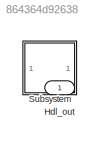
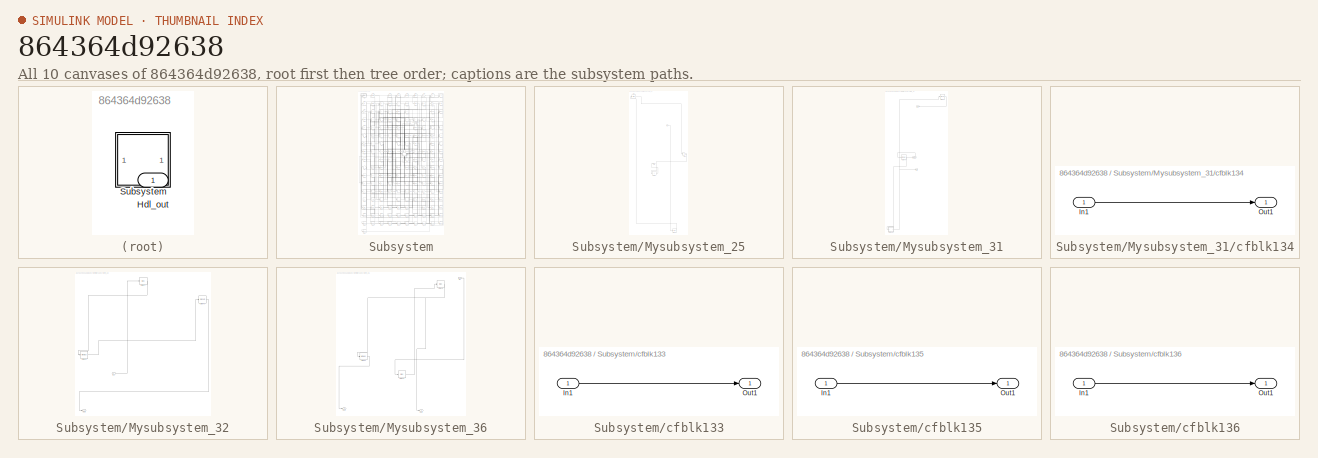
[diagram: thumbnail index - all 10 canvases of the model, root first then tree order]
MODEL slx_864364d92638
KIND model
CONFIG AbsTol = auto
CONFIG EnableMultiTasking = off
CONFIG FixedStep = auto
CONFIG MaxStep = auto
CONFIG MinStep = auto
CONFIG RelTol = 1e-3
CONFIG SampleTimeConstraint = Unconstrained
CONFIG SolverName = VariableStepAuto
CONFIG StartTime = 0.0
CONFIG StopTime = 10.0
BLOCK [Outport] Hdl_out
  OutDataTypeStr = uint8
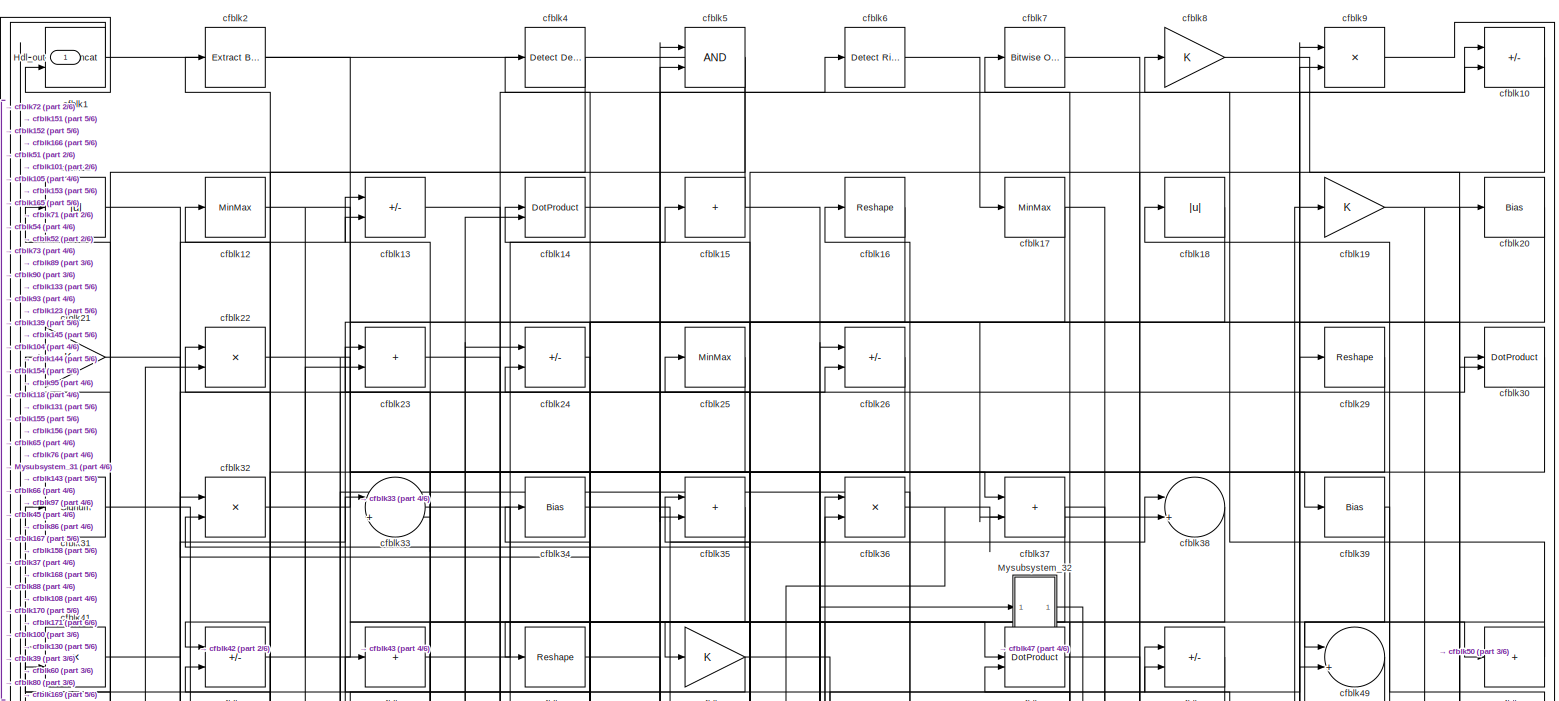
[diagram: Subsystem - part 1/6, full width, top band]
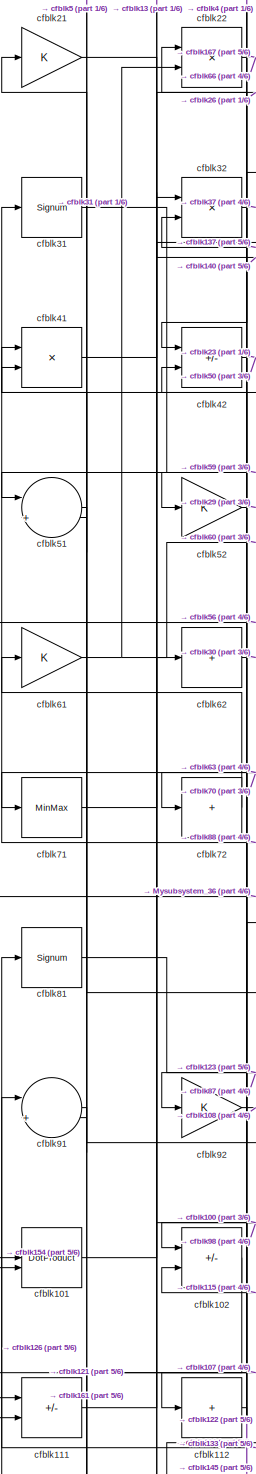
[diagram: Subsystem - part 2/6, middle left region]
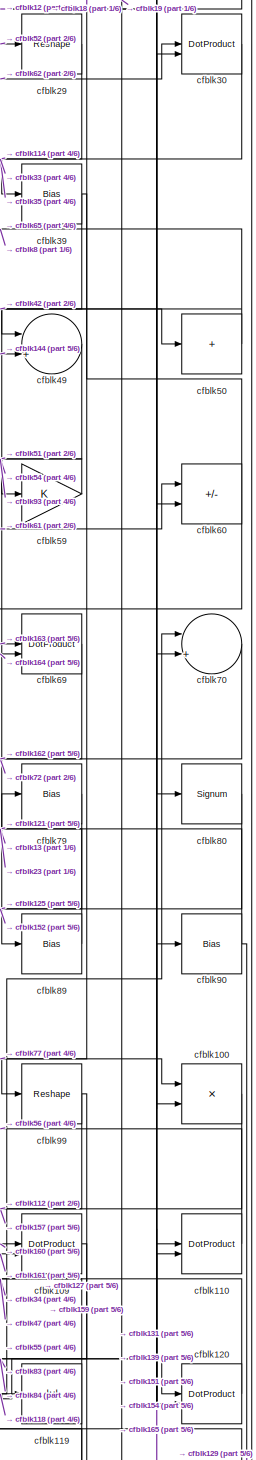
[diagram: Subsystem - part 3/6, middle right region]
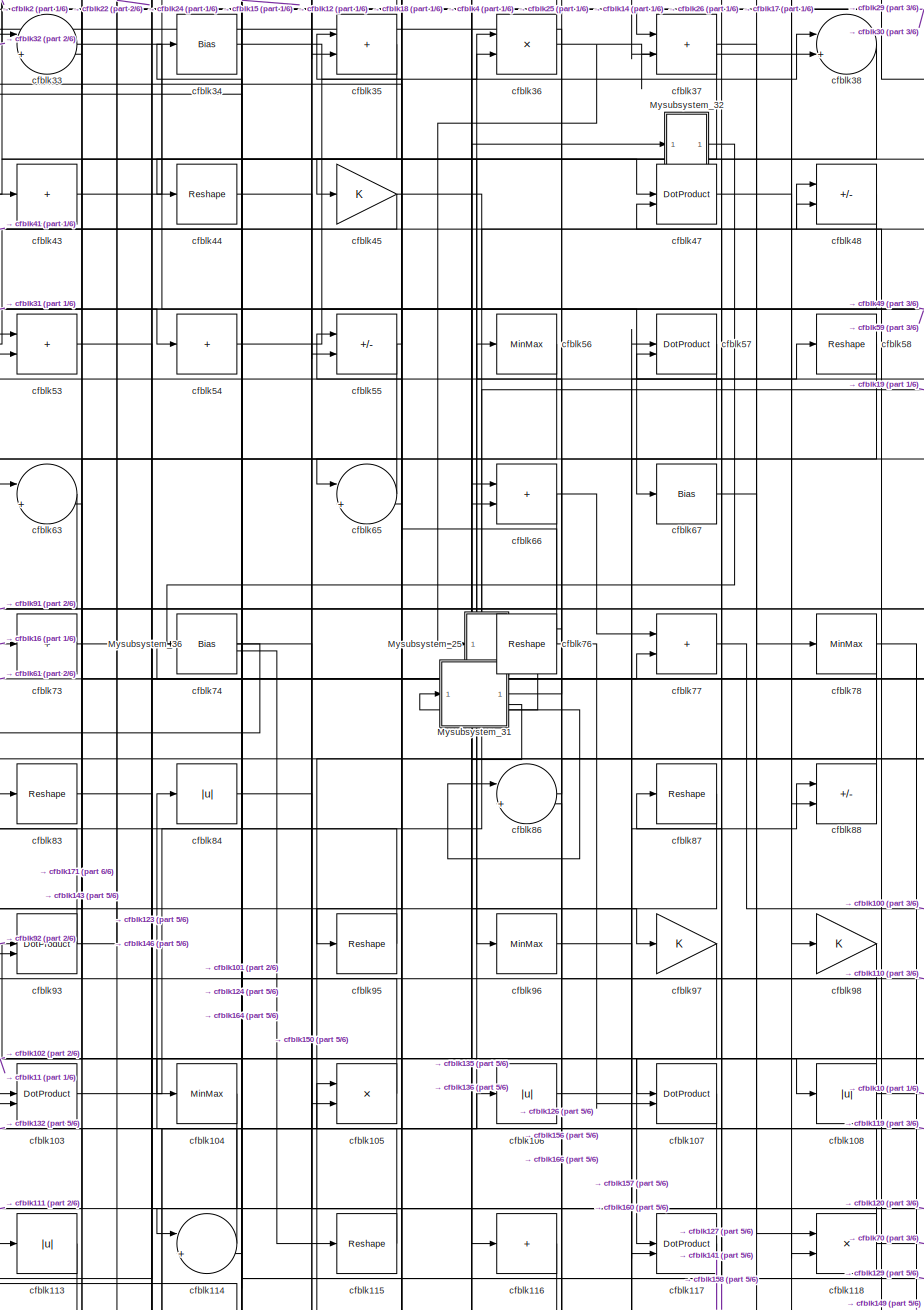
[diagram: Subsystem - part 4/6, central region]
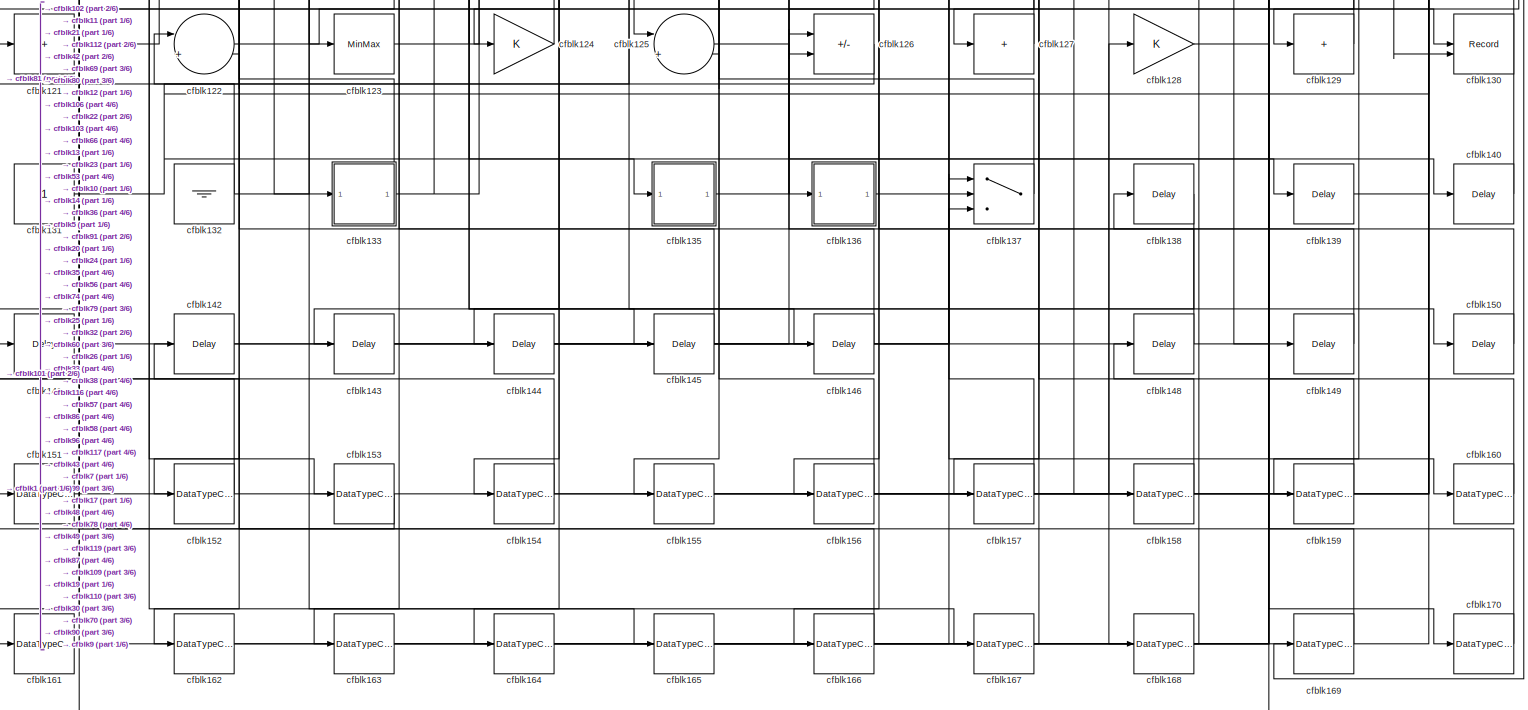
[diagram: Subsystem - part 5/6, full width, bottom band]
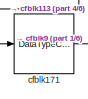
[diagram: Subsystem - part 6/6, bottom left region]
BLOCK [SubSystem] Subsystem
BLOCK [Outport] Subsystem/Hdl_out
  OutDataTypeStr = uint8
BLOCK [SubSystem] Subsystem/Mysubsystem_25
  RTWFcnName = Mysubsystem_25
  RTWFcnNameOpts = User specified
  RTWFileNameOpts = Use function name
  RTWSystemCode = Reusable function
  TreatAsAtomicUnit = on
BLOCK [Inport] Subsystem/Mysubsystem_25/In1
BLOCK [Outport] Subsystem/Mysubsystem_25/Out1
BLOCK [Delay] Subsystem/Mysubsystem_25/cfblk147
  InputPortMap = u0
  SampleTime = 1
BLOCK [Reference] Subsystem/Mysubsystem_25/cfblk3  REF=hdlsllib/Logic and Bit
Operations/Bit Shift
  SourceBlock = hdlsllib/Logic and Bit\nOperations/Bit Shift
  SourceType = Bit Shift
BLOCK [Gain] Subsystem/Mysubsystem_25/cfblk68
BLOCK [Sum] Subsystem/Mysubsystem_25/cfblk85
  IconShape = rectangular
  Inputs = +
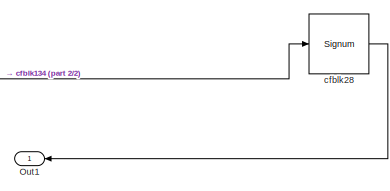
[diagram: Subsystem/Mysubsystem_31 - part 1/2, top right region]
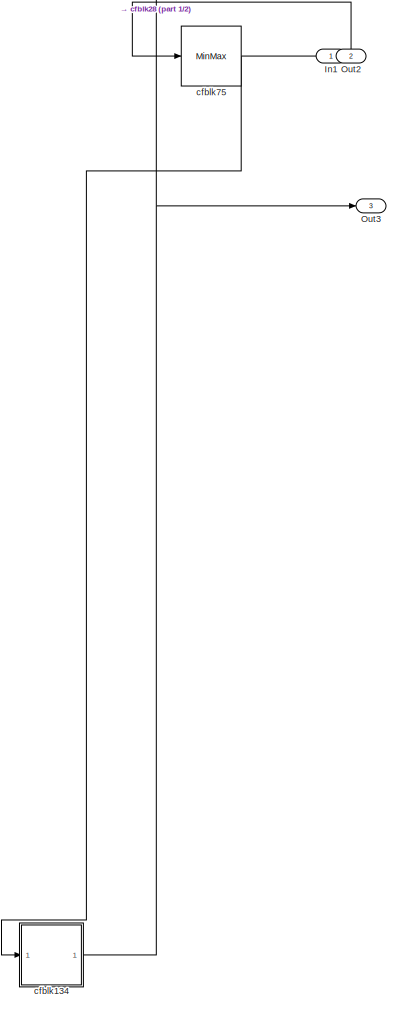
[diagram: Subsystem/Mysubsystem_31 - part 2/2, bottom left region]
BLOCK [SubSystem] Subsystem/Mysubsystem_31
  RTWFcnName = Mysubsystem_31
  RTWFcnNameOpts = User specified
  RTWFileNameOpts = Use function name
  RTWSystemCode = Reusable function
  TreatAsAtomicUnit = on
BLOCK [Inport] Subsystem/Mysubsystem_31/In1
BLOCK [Outport] Subsystem/Mysubsystem_31/Out1
BLOCK [Outport] Subsystem/Mysubsystem_31/Out2
  Port = 2
BLOCK [Outport] Subsystem/Mysubsystem_31/Out3
  Port = 3
BLOCK [SubSystem] Subsystem/Mysubsystem_31/cfblk134
  LibrarySourceBlock = hdlsllib/Ports &\nSubsystems/Subsystem
BLOCK [Inport] Subsystem/Mysubsystem_31/cfblk134/In1
BLOCK [Outport] Subsystem/Mysubsystem_31/cfblk134/Out1
BLOCK [Signum] Subsystem/Mysubsystem_31/cfblk28
BLOCK [MinMax] Subsystem/Mysubsystem_31/cfblk75
BLOCK [SubSystem] Subsystem/Mysubsystem_32
  RTWFcnName = Mysubsystem_32
  RTWFcnNameOpts = User specified
  RTWFileNameOpts = Use function name
  RTWSystemCode = Reusable function
  TreatAsAtomicUnit = on
BLOCK [Inport] Subsystem/Mysubsystem_32/In1
BLOCK [Outport] Subsystem/Mysubsystem_32/Out1
BLOCK [Bias] Subsystem/Mysubsystem_32/cfblk27
  Bias = 0.0
  SaturateOnIntegerOverflow = off
BLOCK [Signum] Subsystem/Mysubsystem_32/cfblk40
BLOCK [MinMax] Subsystem/Mysubsystem_32/cfblk64
BLOCK [SubSystem] Subsystem/Mysubsystem_36
  RTWFcnName = Mysubsystem_36
  RTWFcnNameOpts = User specified
  RTWFileNameOpts = Use function name
  RTWSystemCode = Reusable function
  TreatAsAtomicUnit = on
BLOCK [Inport] Subsystem/Mysubsystem_36/In1
BLOCK [Outport] Subsystem/Mysubsystem_36/Out1
BLOCK [Outport] Subsystem/Mysubsystem_36/Out2
  Port = 2
BLOCK [Bias] Subsystem/Mysubsystem_36/cfblk46
  Bias = 0.0
  SaturateOnIntegerOverflow = off
BLOCK [MinMax] Subsystem/Mysubsystem_36/cfblk82
BLOCK [Bias] Subsystem/Mysubsystem_36/cfblk94
  Bias = 0.0
  SaturateOnIntegerOverflow = off
BLOCK [Reference] Subsystem/cfblk1  REF=hdlsllib/Logic and Bit
Operations/Bit Concat
  SourceBlock = hdlsllib/Logic and Bit\nOperations/Bit Concat
  SourceType = Bit Concat
BLOCK [Sum] Subsystem/cfblk10
  IconShape = rectangular
  Inputs = +-
  OutDataTypeStr = uint8
BLOCK [Product] Subsystem/cfblk100
  Inputs = */
  OutDataTypeStr = uint8
  RndMeth = Zero
  SaturateOnIntegerOverflow = on
BLOCK [DotProduct] Subsystem/cfblk101
  OutDataTypeStr = uint8
BLOCK [Sum] Subsystem/cfblk102
  IconShape = rectangular
  Inputs = +-
  OutDataTypeStr = uint8
BLOCK [DotProduct] Subsystem/cfblk103
  OutDataTypeStr = uint8
BLOCK [MinMax] Subsystem/cfblk104
  OutDataTypeStr = uint8
BLOCK [Product] Subsystem/cfblk105
  Inputs = */
  OutDataTypeStr = uint8
  RndMeth = Zero
  SaturateOnIntegerOverflow = on
BLOCK [Abs] Subsystem/cfblk106
  OutDataTypeStr = uint8
  SaturateOnIntegerOverflow = off
BLOCK [DotProduct] Subsystem/cfblk107
  OutDataTypeStr = uint8
BLOCK [Abs] Subsystem/cfblk108
  OutDataTypeStr = uint8
  SaturateOnIntegerOverflow = off
BLOCK [DotProduct] Subsystem/cfblk109
  OutDataTypeStr = uint8
BLOCK [Abs] Subsystem/cfblk11
  OutDataTypeStr = uint8
  SaturateOnIntegerOverflow = off
BLOCK [DotProduct] Subsystem/cfblk110
  OutDataTypeStr = uint8
BLOCK [Sum] Subsystem/cfblk111
  IconShape = rectangular
  Inputs = +-
  OutDataTypeStr = uint8
BLOCK [Sum] Subsystem/cfblk112
  IconShape = rectangular
  Inputs = +
  OutDataTypeStr = uint8
BLOCK [Abs] Subsystem/cfblk113
  OutDataTypeStr = uint8
  SaturateOnIntegerOverflow = off
BLOCK [Sum] Subsystem/cfblk114
  Inputs = |++
  OutDataTypeStr = uint8
BLOCK [Reshape] Subsystem/cfblk115
BLOCK [Sum] Subsystem/cfblk116
  IconShape = rectangular
  Inputs = +
  OutDataTypeStr = uint8
BLOCK [DotProduct] Subsystem/cfblk117
  OutDataTypeStr = uint8
BLOCK [Product] Subsystem/cfblk118
  Inputs = */
  OutDataTypeStr = uint8
  RndMeth = Zero
  SaturateOnIntegerOverflow = on
BLOCK [Abs] Subsystem/cfblk119
  OutDataTypeStr = uint8
  SaturateOnIntegerOverflow = off
BLOCK [MinMax] Subsystem/cfblk12
  OutDataTypeStr = uint8
BLOCK [DotProduct] Subsystem/cfblk120
  OutDataTypeStr = uint8
BLOCK [Sum] Subsystem/cfblk121
  IconShape = rectangular
  Inputs = +
  OutDataTypeStr = uint8
BLOCK [Sum] Subsystem/cfblk122
  Inputs = |++
  OutDataTypeStr = uint8
BLOCK [MinMax] Subsystem/cfblk123
  OutDataTypeStr = uint8
BLOCK [Gain] Subsystem/cfblk124
  OutDataTypeStr = uint8
BLOCK [Sum] Subsystem/cfblk125
  Inputs = |++
  OutDataTypeStr = uint8
BLOCK [Sum] Subsystem/cfblk126
  IconShape = rectangular
  Inputs = +-
  OutDataTypeStr = uint8
BLOCK [Sum] Subsystem/cfblk127
  IconShape = rectangular
  Inputs = +
  OutDataTypeStr = uint8
BLOCK [Gain] Subsystem/cfblk128
  OutDataTypeStr = uint8
BLOCK [Sum] Subsystem/cfblk129
  IconShape = rectangular
  Inputs = +
  OutDataTypeStr = uint8
BLOCK [Sum] Subsystem/cfblk13
  IconShape = rectangular
  Inputs = +-
  OutDataTypeStr = uint8
BLOCK [Record] Subsystem/cfblk130
  CompatibilityTag = XY
  FileSettingsInternal = {"entries":[{"content":{"excelSettings":{"content":{},"type":"Streamout.ExcelSettings"}},"type":"Streamout.FileSettingStorage","uuid":""}],"packageUris":["http:\/\/schema.mathworks.com\/mf0\/streamout_blocks\/R2020a"],"version":"1.0"}
  Layout = [1 1]
  SignalsInternal = {"entries":[{"content":{"signals":[{"content":{"blockPath":[],"dimensions":[1],"domain":"","lineColor":"#a2142f","plots":[1],"port":1,"signalID":38168,"signalName":"cfblk122"},"type":"RecordBlkView.Signal","uuid":""},{"content":{"blockPath":[],"dimensions":[1],"domain":"","lineColor":"#139fff","plots":[1],"port":2,"signalID":38171,"signalName":"cfblk19"},"type":"RecordBlkView.Signal","uuid":""}]},...<+143ch>
  VisualizationBindings = {"xyplotplugin":{"info":[{"series":[{"bindingParametersList":[{"parameter":"X-Axis","signalID":38168,"signalName":"cfblk122"},{"parameter":"Y-Axis","signalID":38171,"signalName":"cfblk19"}],"seriesID":28821}],"subplotID":1}]}}
  st = -1
BLOCK [Constant] Subsystem/cfblk131
  OutDataTypeStr = uint8
  SampleTime = -1
BLOCK [Ground] Subsystem/cfblk132
BLOCK [SubSystem] Subsystem/cfblk133
  LibrarySourceBlock = hdlsllib/Ports &\nSubsystems/Subsystem
BLOCK [Inport] Subsystem/cfblk133/In1
BLOCK [Outport] Subsystem/cfblk133/Out1
BLOCK [SubSystem] Subsystem/cfblk135
  LibrarySourceBlock = hdlsllib/Ports &\nSubsystems/Subsystem
BLOCK [Inport] Subsystem/cfblk135/In1
BLOCK [Outport] Subsystem/cfblk135/Out1
BLOCK [SubSystem] Subsystem/cfblk136
  LibrarySourceBlock = hdlsllib/Ports &\nSubsystems/Subsystem
BLOCK [Inport] Subsystem/cfblk136/In1
BLOCK [Outport] Subsystem/cfblk136/Out1
BLOCK [Switch] Subsystem/cfblk137
  InputSameDT = off
  OutDataTypeStr = uint8
  SaturateOnIntegerOverflow = off
BLOCK [Delay] Subsystem/cfblk138
  InputPortMap = u0
  SampleTime = 1
BLOCK [Delay] Subsystem/cfblk139
  InputPortMap = u0
  SampleTime = 1
BLOCK [DotProduct] Subsystem/cfblk14
  OutDataTypeStr = uint8
BLOCK [Delay] Subsystem/cfblk140
  InputPortMap = u0
  SampleTime = 1
BLOCK [Delay] Subsystem/cfblk141
  InputPortMap = u0
  SampleTime = 1
BLOCK [Delay] Subsystem/cfblk142
  InputPortMap = u0
  SampleTime = 1
BLOCK [Delay] Subsystem/cfblk143
  InputPortMap = u0
  SampleTime = 1
BLOCK [Delay] Subsystem/cfblk144
  InputPortMap = u0
  SampleTime = 1
BLOCK [Delay] Subsystem/cfblk145
  InputPortMap = u0
  SampleTime = 1
BLOCK [Delay] Subsystem/cfblk146
  InputPortMap = u0
  SampleTime = 1
BLOCK [Delay] Subsystem/cfblk148
  InputPortMap = u0
  SampleTime = 1
BLOCK [Delay] Subsystem/cfblk149
  InputPortMap = u0
  SampleTime = 1
BLOCK [Sum] Subsystem/cfblk15
  IconShape = rectangular
  Inputs = +
  OutDataTypeStr = uint8
BLOCK [Delay] Subsystem/cfblk150
  InputPortMap = u0
  SampleTime = 1
BLOCK [DataTypeConversion] Subsystem/cfblk151
  OutDataTypeStr = uint8
  RndMeth = Floor
  SaturateOnIntegerOverflow = off
BLOCK [DataTypeConversion] Subsystem/cfblk152
  OutDataTypeStr = uint8
  RndMeth = Floor
  SaturateOnIntegerOverflow = off
BLOCK [DataTypeConversion] Subsystem/cfblk153
  OutDataTypeStr = uint8
  RndMeth = Floor
  SaturateOnIntegerOverflow = off
BLOCK [DataTypeConversion] Subsystem/cfblk154
  OutDataTypeStr = uint8
  RndMeth = Floor
  SaturateOnIntegerOverflow = off
BLOCK [DataTypeConversion] Subsystem/cfblk155
  OutDataTypeStr = uint8
  RndMeth = Floor
  SaturateOnIntegerOverflow = off
BLOCK [DataTypeConversion] Subsystem/cfblk156
  OutDataTypeStr = uint8
  RndMeth = Floor
  SaturateOnIntegerOverflow = off
BLOCK [DataTypeConversion] Subsystem/cfblk157
  OutDataTypeStr = uint8
  RndMeth = Floor
  SaturateOnIntegerOverflow = off
BLOCK [DataTypeConversion] Subsystem/cfblk158
  OutDataTypeStr = uint8
  RndMeth = Floor
  SaturateOnIntegerOverflow = off
BLOCK [DataTypeConversion] Subsystem/cfblk159
  OutDataTypeStr = uint8
  RndMeth = Floor
  SaturateOnIntegerOverflow = off
BLOCK [Reshape] Subsystem/cfblk16
BLOCK [DataTypeConversion] Subsystem/cfblk160
  OutDataTypeStr = uint8
  RndMeth = Floor
  SaturateOnIntegerOverflow = off
BLOCK [DataTypeConversion] Subsystem/cfblk161
  OutDataTypeStr = uint8
  RndMeth = Floor
  SaturateOnIntegerOverflow = off
BLOCK [DataTypeConversion] Subsystem/cfblk162
  OutDataTypeStr = uint8
  RndMeth = Floor
  SaturateOnIntegerOverflow = off
BLOCK [DataTypeConversion] Subsystem/cfblk163
  OutDataTypeStr = uint8
  RndMeth = Floor
  SaturateOnIntegerOverflow = off
BLOCK [DataTypeConversion] Subsystem/cfblk164
  OutDataTypeStr = uint8
  RndMeth = Floor
  SaturateOnIntegerOverflow = off
BLOCK [DataTypeConversion] Subsystem/cfblk165
  OutDataTypeStr = uint8
  RndMeth = Floor
  SaturateOnIntegerOverflow = off
BLOCK [DataTypeConversion] Subsystem/cfblk166
  OutDataTypeStr = uint8
  RndMeth = Floor
  SaturateOnIntegerOverflow = off
BLOCK [DataTypeConversion] Subsystem/cfblk167
  OutDataTypeStr = uint8
  RndMeth = Floor
  SaturateOnIntegerOverflow = off
BLOCK [DataTypeConversion] Subsystem/cfblk168
  OutDataTypeStr = uint8
  RndMeth = Floor
  SaturateOnIntegerOverflow = off
BLOCK [DataTypeConversion] Subsystem/cfblk169
  OutDataTypeStr = uint8
  RndMeth = Floor
  SaturateOnIntegerOverflow = off
BLOCK [MinMax] Subsystem/cfblk17
  OutDataTypeStr = uint8
BLOCK [DataTypeConversion] Subsystem/cfblk170
  OutDataTypeStr = uint8
  RndMeth = Floor
  SaturateOnIntegerOverflow = off
BLOCK [DataTypeConversion] Subsystem/cfblk171
  OutDataTypeStr = uint8
  RndMeth = Floor
  SaturateOnIntegerOverflow = off
BLOCK [Abs] Subsystem/cfblk18
  OutDataTypeStr = uint8
  SaturateOnIntegerOverflow = off
BLOCK [Gain] Subsystem/cfblk19
  OutDataTypeStr = uint8
BLOCK [Reference] Subsystem/cfblk2  REF=simulink/Logic and Bit
Operations/Extract Bits
  LibrarySourceBlock = hdlsllib/Logic and Bit\nOperations/Extract Bits
  SourceBlock = simulink/Logic and Bit\nOperations/Extract Bits
  SourceType = Extract Bits
BLOCK [Bias] Subsystem/cfblk20
  Bias = 0.0
  SaturateOnIntegerOverflow = off
BLOCK [Gain] Subsystem/cfblk21
  OutDataTypeStr = uint8
BLOCK [Product] Subsystem/cfblk22
  Inputs = */
  OutDataTypeStr = uint8
  RndMeth = Zero
  SaturateOnIntegerOverflow = on
BLOCK [Sum] Subsystem/cfblk23
  IconShape = rectangular
  OutDataTypeStr = uint8
BLOCK [Sum] Subsystem/cfblk24
  IconShape = rectangular
  Inputs = +-
  OutDataTypeStr = uint8
BLOCK [MinMax] Subsystem/cfblk25
  OutDataTypeStr = uint8
BLOCK [Sum] Subsystem/cfblk26
  IconShape = rectangular
  Inputs = +-
  OutDataTypeStr = uint8
BLOCK [Reshape] Subsystem/cfblk29
BLOCK [DotProduct] Subsystem/cfblk30
  OutDataTypeStr = uint8
BLOCK [Signum] Subsystem/cfblk31
BLOCK [Product] Subsystem/cfblk32
  Inputs = */
  OutDataTypeStr = uint8
  RndMeth = Zero
  SaturateOnIntegerOverflow = on
BLOCK [Sum] Subsystem/cfblk33
  Inputs = |++
  OutDataTypeStr = uint8
BLOCK [Bias] Subsystem/cfblk34
  Bias = 0.0
  SaturateOnIntegerOverflow = off
BLOCK [Sum] Subsystem/cfblk35
  IconShape = rectangular
  OutDataTypeStr = uint8
BLOCK [Product] Subsystem/cfblk36
  Inputs = */
  OutDataTypeStr = uint8
  RndMeth = Zero
  SaturateOnIntegerOverflow = on
BLOCK [Sum] Subsystem/cfblk37
  IconShape = rectangular
  OutDataTypeStr = uint8
BLOCK [Sum] Subsystem/cfblk38
  Inputs = |++
  OutDataTypeStr = uint8
BLOCK [Bias] Subsystem/cfblk39
  Bias = 0.0
  SaturateOnIntegerOverflow = off
BLOCK [Reference] Subsystem/cfblk4  REF=simulink/Logic and Bit
Operations/Detect
Decrease
  LibrarySourceBlock = hdlsllib/Logic and Bit\nOperations/Detect\nDecrease
  SourceBlock = simulink/Logic and Bit\nOperations/Detect\nDecrease
  SourceType = Detect Decrease
BLOCK [Product] Subsystem/cfblk41
  Inputs = */
  OutDataTypeStr = uint8
  RndMeth = Zero
  SaturateOnIntegerOverflow = on
BLOCK [Sum] Subsystem/cfblk42
  IconShape = rectangular
  Inputs = +-
  OutDataTypeStr = uint8
BLOCK [Sum] Subsystem/cfblk43
  IconShape = rectangular
  Inputs = +
  OutDataTypeStr = uint8
BLOCK [Reshape] Subsystem/cfblk44
BLOCK [Gain] Subsystem/cfblk45
  OutDataTypeStr = uint8
BLOCK [DotProduct] Subsystem/cfblk47
  OutDataTypeStr = uint8
BLOCK [Sum] Subsystem/cfblk48
  IconShape = rectangular
  Inputs = +-
  OutDataTypeStr = uint8
BLOCK [Sum] Subsystem/cfblk49
  Inputs = |++
  OutDataTypeStr = uint8
BLOCK [Logic] Subsystem/cfblk5
  AllPortsSameDT = off
  OutDataTypeStr = boolean
BLOCK [Sum] Subsystem/cfblk50
  IconShape = rectangular
  Inputs = +
  OutDataTypeStr = uint8
BLOCK [Sum] Subsystem/cfblk51
  Inputs = |++
  OutDataTypeStr = uint8
BLOCK [Gain] Subsystem/cfblk52
  OutDataTypeStr = uint8
BLOCK [Sum] Subsystem/cfblk53
  IconShape = rectangular
  OutDataTypeStr = uint8
BLOCK [Sum] Subsystem/cfblk54
  IconShape = rectangular
  Inputs = +
  OutDataTypeStr = uint8
BLOCK [Sum] Subsystem/cfblk55
  IconShape = rectangular
  Inputs = +-
  OutDataTypeStr = uint8
BLOCK [MinMax] Subsystem/cfblk56
  OutDataTypeStr = uint8
BLOCK [DotProduct] Subsystem/cfblk57
  OutDataTypeStr = uint8
BLOCK [Reshape] Subsystem/cfblk58
BLOCK [Gain] Subsystem/cfblk59
  OutDataTypeStr = uint8
BLOCK [Reference] Subsystem/cfblk6  REF=hdlsllib/Logic and Bit
Operations/Detect Rise
Nonnegative
  SourceBlock = hdlsllib/Logic and Bit\nOperations/Detect Rise\nNonnegative
  SourceType = Detect Rise Nonnegative
BLOCK [Sum] Subsystem/cfblk60
  IconShape = rectangular
  Inputs = +-
  OutDataTypeStr = uint8
BLOCK [Gain] Subsystem/cfblk61
  OutDataTypeStr = uint8
BLOCK [Sum] Subsystem/cfblk62
  IconShape = rectangular
  Inputs = +
  OutDataTypeStr = uint8
BLOCK [Sum] Subsystem/cfblk63
  Inputs = |++
  OutDataTypeStr = uint8
BLOCK [Sum] Subsystem/cfblk65
  Inputs = |++
  OutDataTypeStr = uint8
BLOCK [Sum] Subsystem/cfblk66
  IconShape = rectangular
  OutDataTypeStr = uint8
BLOCK [Bias] Subsystem/cfblk67
  Bias = 0.0
  SaturateOnIntegerOverflow = off
BLOCK [DotProduct] Subsystem/cfblk69
  OutDataTypeStr = uint8
BLOCK [Reference] Subsystem/cfblk7  REF=simulink/Logic and Bit
Operations/Bitwise
Operator
  LibrarySourceBlock = hdlsllib/Logic and Bit\nOperations/Bitwise\nOperator
  SourceBlock = simulink/Logic and Bit\nOperations/Bitwise\nOperator
  SourceType = Bitwise Operator
BLOCK [Sum] Subsystem/cfblk70
  Inputs = |++
  OutDataTypeStr = uint8
BLOCK [MinMax] Subsystem/cfblk71
  OutDataTypeStr = uint8
BLOCK [Sum] Subsystem/cfblk72
  IconShape = rectangular
  Inputs = +
  OutDataTypeStr = uint8
BLOCK [Sum] Subsystem/cfblk73
  IconShape = rectangular
  Inputs = +
  OutDataTypeStr = uint8
BLOCK [Bias] Subsystem/cfblk74
  Bias = 0.0
  SaturateOnIntegerOverflow = off
BLOCK [Reshape] Subsystem/cfblk76
BLOCK [Sum] Subsystem/cfblk77
  IconShape = rectangular
  OutDataTypeStr = uint8
BLOCK [MinMax] Subsystem/cfblk78
  OutDataTypeStr = uint8
BLOCK [Bias] Subsystem/cfblk79
  Bias = 0.0
  SaturateOnIntegerOverflow = off
BLOCK [Gain] Subsystem/cfblk8
  OutDataTypeStr = uint8
BLOCK [Signum] Subsystem/cfblk80
BLOCK [Signum] Subsystem/cfblk81
BLOCK [Reshape] Subsystem/cfblk83
BLOCK [Abs] Subsystem/cfblk84
  OutDataTypeStr = uint8
  SaturateOnIntegerOverflow = off
BLOCK [Sum] Subsystem/cfblk86
  Inputs = |++
  OutDataTypeStr = uint8
BLOCK [Reshape] Subsystem/cfblk87
BLOCK [Sum] Subsystem/cfblk88
  IconShape = rectangular
  Inputs = +-
  OutDataTypeStr = uint8
BLOCK [Bias] Subsystem/cfblk89
  Bias = 0.0
  SaturateOnIntegerOverflow = off
BLOCK [Product] Subsystem/cfblk9
  Inputs = */
  OutDataTypeStr = uint8
  RndMeth = Zero
  SaturateOnIntegerOverflow = on
BLOCK [Bias] Subsystem/cfblk90
  Bias = 0.0
  SaturateOnIntegerOverflow = off
BLOCK [Sum] Subsystem/cfblk91
  Inputs = |++
  OutDataTypeStr = uint8
BLOCK [Gain] Subsystem/cfblk92
  OutDataTypeStr = uint8
BLOCK [DotProduct] Subsystem/cfblk93
  OutDataTypeStr = uint8
BLOCK [Reshape] Subsystem/cfblk95
BLOCK [MinMax] Subsystem/cfblk96
  OutDataTypeStr = uint8
BLOCK [Gain] Subsystem/cfblk97
  OutDataTypeStr = uint8
BLOCK [Gain] Subsystem/cfblk98
  OutDataTypeStr = uint8
BLOCK [Reshape] Subsystem/cfblk99
LINE Subsystem/Mysubsystem_25/In1:1 -> Subsystem/Mysubsystem_25/cfblk147:1
LINE Subsystem/Mysubsystem_25/cfblk147:1 -> Subsystem/Mysubsystem_25/cfblk3:1
LINE Subsystem/Mysubsystem_25/cfblk3:1 -> Subsystem/Mysubsystem_25/cfblk68:1
LINE Subsystem/Mysubsystem_25/cfblk68:1 -> Subsystem/Mysubsystem_25/cfblk85:1
LINE Subsystem/Mysubsystem_25/cfblk85:1 -> Subsystem/Mysubsystem_25/Out1:1
LINE Subsystem/Mysubsystem_25:1 -> Subsystem/Mysubsystem_31:1
LINE Subsystem/Mysubsystem_31/In1:1 -> Subsystem/Mysubsystem_31/cfblk75:1
LINE Subsystem/Mysubsystem_31/cfblk134/In1:1 -> Subsystem/Mysubsystem_31/cfblk134/Out1:1
NET Subsystem/Mysubsystem_31/cfblk134:1 -> Subsystem/Mysubsystem_31/Out3:1, Subsystem/Mysubsystem_31/cfblk28:1
LINE Subsystem/Mysubsystem_31/cfblk28:1 -> Subsystem/Mysubsystem_31/Out1:1
NET Subsystem/Mysubsystem_31/cfblk75:1 -> Subsystem/Mysubsystem_31/Out2:1, Subsystem/Mysubsystem_31/cfblk134:1
NET Subsystem/Mysubsystem_31:1 -> Subsystem/cfblk53:2, Subsystem/cfblk76:1
NET Subsystem/Mysubsystem_31:2 -> Subsystem/Mysubsystem_32:1, Subsystem/cfblk19:1
LINE Subsystem/Mysubsystem_31:3 -> Subsystem/cfblk86:1
LINE Subsystem/Mysubsystem_32/In1:1 -> Subsystem/Mysubsystem_32/cfblk27:1
LINE Subsystem/Mysubsystem_32/cfblk27:1 -> Subsystem/Mysubsystem_32/cfblk64:1
LINE Subsystem/Mysubsystem_32/cfblk40:1 -> Subsystem/Mysubsystem_32/Out1:1
LINE Subsystem/Mysubsystem_32/cfblk64:1 -> Subsystem/Mysubsystem_32/cfblk40:1
LINE Subsystem/Mysubsystem_32:1 -> Subsystem/Mysubsystem_36:1
LINE Subsystem/Mysubsystem_36/In1:1 -> Subsystem/Mysubsystem_36/cfblk94:1
NET Subsystem/Mysubsystem_36/cfblk46:1 -> Subsystem/Mysubsystem_36/Out2:1, Subsystem/Mysubsystem_36/cfblk82:1
LINE Subsystem/Mysubsystem_36/cfblk82:1 -> Subsystem/Mysubsystem_36/Out1:1
LINE Subsystem/Mysubsystem_36/cfblk94:1 -> Subsystem/Mysubsystem_36/cfblk46:1
LINE Subsystem/Mysubsystem_36:1 -> Subsystem/cfblk111:1
LINE Subsystem/Mysubsystem_36:2 -> Subsystem/cfblk115:1
LINE Subsystem/cfblk100:1 -> Subsystem/cfblk112:1
LINE Subsystem/cfblk101:1 -> Subsystem/cfblk26:2
LINE Subsystem/cfblk102:1 -> Subsystem/cfblk161:1
LINE Subsystem/cfblk103:1 -> Subsystem/cfblk48:1
LINE Subsystem/cfblk104:1 -> Subsystem/cfblk114:1
NET Subsystem/cfblk105:1 -> Subsystem/cfblk2:1, Subsystem/cfblk41:1, Subsystem/cfblk63:2
LINE Subsystem/cfblk106:1 -> Subsystem/cfblk88:1
LINE Subsystem/cfblk107:1 -> Subsystem/cfblk111:2
NET Subsystem/cfblk108:1 -> Subsystem/cfblk10:2, Subsystem/cfblk74:1
LINE Subsystem/cfblk109:1 -> Subsystem/cfblk159:1
NET Subsystem/cfblk10:1 -> Subsystem/cfblk45:1, Subsystem/cfblk65:2, Subsystem/cfblk88:2
LINE Subsystem/cfblk110:1 -> Subsystem/cfblk56:1
LINE Subsystem/cfblk111:1 -> Subsystem/cfblk62:1
LINE Subsystem/cfblk112:1 -> Subsystem/cfblk122:2
LINE Subsystem/cfblk113:1 -> Subsystem/cfblk171:1
LINE Subsystem/cfblk114:1 -> Subsystem/cfblk84:1
LINE Subsystem/cfblk115:1 -> Subsystem/cfblk102:2
LINE Subsystem/cfblk116:1 -> Subsystem/cfblk126:2
LINE Subsystem/cfblk117:1 -> Subsystem/cfblk141:1
NET Subsystem/cfblk118:1 -> Subsystem/cfblk105:1, Subsystem/cfblk70:1
NET Subsystem/cfblk119:1 -> Subsystem/cfblk127:1, Subsystem/cfblk34:1, Subsystem/cfblk47:2
NET Subsystem/cfblk11:1 -> Subsystem/cfblk105:2, Subsystem/cfblk153:1
LINE Subsystem/cfblk120:1 -> Subsystem/cfblk55:1
LINE Subsystem/cfblk121:1 -> Subsystem/cfblk79:1
LINE Subsystem/cfblk122:1 -> Subsystem/cfblk130:1
NET Subsystem/cfblk123:1 -> Subsystem/cfblk10:1, Subsystem/cfblk36:1
LINE Subsystem/cfblk124:1 -> Subsystem/cfblk91:1
LINE Subsystem/cfblk125:1 -> Subsystem/cfblk140:1
LINE Subsystem/cfblk126:1 -> Subsystem/cfblk81:1
LINE Subsystem/cfblk127:1 -> Subsystem/cfblk43:1
LINE Subsystem/cfblk128:1 -> Subsystem/cfblk170:1
LINE Subsystem/cfblk129:1 -> Subsystem/cfblk87:1
NET Subsystem/cfblk12:1 -> Subsystem/cfblk133:1, Subsystem/cfblk39:1, Subsystem/cfblk60:2
NET Subsystem/cfblk131:1 -> Subsystem/cfblk135:1, Subsystem/cfblk30:2, Subsystem/cfblk5:2
NET Subsystem/cfblk132:1 -> Subsystem/cfblk106:1, Subsystem/cfblk122:1
LINE Subsystem/cfblk133/In1:1 -> Subsystem/cfblk133/Out1:1
NET Subsystem/cfblk133:1 -> Subsystem/cfblk14:2, Subsystem/cfblk22:1, Subsystem/cfblk5:1
LINE Subsystem/cfblk135/In1:1 -> Subsystem/cfblk135/Out1:1
LINE Subsystem/cfblk135:1 -> Subsystem/cfblk38:1
LINE Subsystem/cfblk136/In1:1 -> Subsystem/cfblk136/Out1:1
LINE Subsystem/cfblk136:1 -> Subsystem/cfblk58:1
LINE Subsystem/cfblk137:1 -> Subsystem/cfblk32:2
LINE Subsystem/cfblk138:1 -> Subsystem/cfblk163:1
LINE Subsystem/cfblk139:1 -> Subsystem/cfblk70:2
LINE Subsystem/cfblk13:1 -> Subsystem/cfblk139:1
LINE Subsystem/cfblk140:1 -> Subsystem/cfblk32:1
LINE Subsystem/cfblk141:1 -> Subsystem/cfblk137:2
LINE Subsystem/cfblk142:1 -> Subsystem/cfblk137:1
LINE Subsystem/cfblk143:1 -> Subsystem/cfblk26:1
LINE Subsystem/cfblk144:1 -> Subsystem/cfblk49:2
LINE Subsystem/cfblk145:1 -> Subsystem/cfblk42:2
LINE Subsystem/cfblk146:1 -> Subsystem/cfblk103:2
LINE Subsystem/cfblk148:1 -> Subsystem/cfblk126:1
LINE Subsystem/cfblk149:1 -> Subsystem/cfblk86:2
NET Subsystem/cfblk14:1 -> Subsystem/cfblk118:2, Subsystem/cfblk6:1
LINE Subsystem/cfblk150:1 -> Subsystem/cfblk48:2
LINE Subsystem/cfblk151:1 -> Subsystem/cfblk110:2
LINE Subsystem/cfblk152:1 -> Subsystem/cfblk1:1
LINE Subsystem/cfblk153:1 -> Subsystem/cfblk1:2
NET Subsystem/cfblk154:1 -> Subsystem/cfblk101:1, Subsystem/cfblk90:1
LINE Subsystem/cfblk155:1 -> Subsystem/cfblk20:1
NET Subsystem/cfblk156:1 -> Subsystem/cfblk128:1, Subsystem/cfblk25:1
LINE Subsystem/cfblk157:1 -> Subsystem/cfblk57:1
LINE Subsystem/cfblk158:1 -> Subsystem/cfblk57:2
LINE Subsystem/cfblk159:1 -> Subsystem/cfblk138:1
NET Subsystem/cfblk15:1 -> Subsystem/Hdl_out:1, Subsystem/cfblk97:1
LINE Subsystem/cfblk160:1 -> Subsystem/cfblk109:1
LINE Subsystem/cfblk161:1 -> Subsystem/cfblk109:2
LINE Subsystem/cfblk162:1 -> Subsystem/cfblk137:3
LINE Subsystem/cfblk163:1 -> Subsystem/cfblk69:1
LINE Subsystem/cfblk164:1 -> Subsystem/cfblk69:2
LINE Subsystem/cfblk165:1 -> Subsystem/cfblk110:1
LINE Subsystem/cfblk166:1 -> Subsystem/cfblk21:1
LINE Subsystem/cfblk167:1 -> Subsystem/cfblk7:1
LINE Subsystem/cfblk168:1 -> Subsystem/cfblk148:1
LINE Subsystem/cfblk169:1 -> Subsystem/cfblk142:1
LINE Subsystem/cfblk16:1 -> Subsystem/cfblk73:1
LINE Subsystem/cfblk170:1 -> Subsystem/cfblk9:1
LINE Subsystem/cfblk171:1 -> Subsystem/cfblk9:2
NET Subsystem/cfblk17:1 -> Subsystem/cfblk155:1, Subsystem/cfblk158:1, Subsystem/cfblk37:2
LINE Subsystem/cfblk18:1 -> Subsystem/cfblk104:1
NET Subsystem/cfblk19:1 -> Subsystem/cfblk100:2, Subsystem/cfblk130:2
LINE Subsystem/cfblk1:1 -> Subsystem/cfblk151:1
LINE Subsystem/cfblk20:1 -> Subsystem/cfblk154:1
LINE Subsystem/cfblk21:1 -> Subsystem/cfblk165:1
NET Subsystem/cfblk22:1 -> Subsystem/cfblk167:1, Subsystem/cfblk66:1
LINE Subsystem/cfblk23:1 -> Subsystem/cfblk145:1
LINE Subsystem/cfblk24:1 -> Subsystem/cfblk144:1
LINE Subsystem/cfblk25:1 -> Subsystem/cfblk93:1
NET Subsystem/cfblk26:1 -> Subsystem/cfblk52:1, Subsystem/cfblk66:2
NET Subsystem/cfblk29:1 -> Subsystem/cfblk114:2, Subsystem/cfblk35:2
LINE Subsystem/cfblk2:1 -> Subsystem/cfblk47:1
NET Subsystem/cfblk30:1 -> Subsystem/cfblk33:2, Subsystem/cfblk65:1
LINE Subsystem/cfblk31:1 -> Subsystem/cfblk54:1
LINE Subsystem/cfblk32:1 -> Subsystem/cfblk37:1
LINE Subsystem/cfblk33:1 -> Subsystem/cfblk136:1
NET Subsystem/cfblk34:1 -> Subsystem/cfblk116:1, Subsystem/cfblk36:2
LINE Subsystem/cfblk35:1 -> Subsystem/cfblk124:1
NET Subsystem/cfblk36:1 -> Subsystem/Mysubsystem_25:1, Subsystem/cfblk38:2
NET Subsystem/cfblk37:1 -> Subsystem/cfblk118:1, Subsystem/cfblk44:1, Subsystem/cfblk96:1
NET Subsystem/cfblk38:1 -> Subsystem/cfblk107:1, Subsystem/cfblk53:1
NET Subsystem/cfblk39:1 -> Subsystem/cfblk89:1, Subsystem/cfblk99:1
LINE Subsystem/cfblk41:1 -> Subsystem/cfblk33:1
NET Subsystem/cfblk42:1 -> Subsystem/cfblk23:2, Subsystem/cfblk50:1
LINE Subsystem/cfblk43:1 -> Subsystem/cfblk15:1
LINE Subsystem/cfblk44:1 -> Subsystem/cfblk55:2
NET Subsystem/cfblk45:1 -> Subsystem/cfblk41:2, Subsystem/cfblk67:1
LINE Subsystem/cfblk47:1 -> Subsystem/cfblk98:1
LINE Subsystem/cfblk48:1 -> Subsystem/cfblk95:1
LINE Subsystem/cfblk49:1 -> Subsystem/cfblk93:2
LINE Subsystem/cfblk4:1 -> Subsystem/cfblk42:1
NET Subsystem/cfblk50:1 -> Subsystem/cfblk49:1, Subsystem/cfblk8:1
LINE Subsystem/cfblk51:1 -> Subsystem/cfblk71:1
LINE Subsystem/cfblk52:1 -> Subsystem/cfblk29:1
LINE Subsystem/cfblk53:1 -> Subsystem/cfblk146:1
LINE Subsystem/cfblk54:1 -> Subsystem/cfblk59:1
NET Subsystem/cfblk55:1 -> Subsystem/cfblk113:1, Subsystem/cfblk35:1
NET Subsystem/cfblk56:1 -> Subsystem/cfblk101:2, Subsystem/cfblk164:1
LINE Subsystem/cfblk57:1 -> Subsystem/cfblk156:1
LINE Subsystem/cfblk58:1 -> Subsystem/cfblk117:2
LINE Subsystem/cfblk59:1 -> Subsystem/cfblk51:1
LINE Subsystem/cfblk5:1 -> Subsystem/cfblk51:2
NET Subsystem/cfblk60:1 -> Subsystem/cfblk125:2, Subsystem/cfblk18:1
NET Subsystem/cfblk61:1 -> Subsystem/cfblk22:2, Subsystem/cfblk60:1
LINE Subsystem/cfblk62:1 -> Subsystem/cfblk30:1
LINE Subsystem/cfblk63:1 -> Subsystem/cfblk91:2
LINE Subsystem/cfblk65:1 -> Subsystem/cfblk63:1
NET Subsystem/cfblk66:1 -> Subsystem/cfblk143:1, Subsystem/cfblk77:1
LINE Subsystem/cfblk67:1 -> Subsystem/cfblk78:1
LINE Subsystem/cfblk69:1 -> Subsystem/cfblk162:1
LINE Subsystem/cfblk6:1 -> Subsystem/cfblk17:1
LINE Subsystem/cfblk70:1 -> Subsystem/cfblk72:1
LINE Subsystem/cfblk71:1 -> Subsystem/cfblk13:1
LINE Subsystem/cfblk72:1 -> Subsystem/cfblk31:1
NET Subsystem/cfblk73:1 -> Subsystem/cfblk103:1, Subsystem/cfblk77:2
LINE Subsystem/cfblk74:1 -> Subsystem/cfblk150:1
NET Subsystem/cfblk76:1 -> Subsystem/cfblk107:2, Subsystem/cfblk14:1, Subsystem/cfblk24:2
LINE Subsystem/cfblk77:1 -> Subsystem/cfblk100:1
NET Subsystem/cfblk78:1 -> Subsystem/cfblk149:1, Subsystem/cfblk166:1
LINE Subsystem/cfblk79:1 -> Subsystem/cfblk125:1
LINE Subsystem/cfblk7:1 -> Subsystem/cfblk168:1
LINE Subsystem/cfblk80:1 -> Subsystem/cfblk152:1
LINE Subsystem/cfblk81:1 -> Subsystem/cfblk123:1
LINE Subsystem/cfblk83:1 -> Subsystem/cfblk120:1
LINE Subsystem/cfblk84:1 -> Subsystem/cfblk120:2
LINE Subsystem/cfblk86:1 -> Subsystem/cfblk16:1
LINE Subsystem/cfblk87:1 -> Subsystem/cfblk92:1
LINE Subsystem/cfblk88:1 -> Subsystem/cfblk61:1
LINE Subsystem/cfblk89:1 -> Subsystem/cfblk23:1
LINE Subsystem/cfblk8:1 -> Subsystem/cfblk80:1
NET Subsystem/cfblk90:1 -> Subsystem/cfblk129:1, Subsystem/cfblk13:2
LINE Subsystem/cfblk91:1 -> Subsystem/cfblk121:1
LINE Subsystem/cfblk92:1 -> Subsystem/cfblk108:1
NET Subsystem/cfblk93:1 -> Subsystem/cfblk24:1, Subsystem/cfblk83:1
NET Subsystem/cfblk95:1 -> Subsystem/cfblk11:1, Subsystem/cfblk12:1, Subsystem/cfblk4:1
LINE Subsystem/cfblk96:1 -> Subsystem/cfblk160:1
LINE Subsystem/cfblk97:1 -> Subsystem/cfblk117:1
LINE Subsystem/cfblk98:1 -> Subsystem/cfblk102:1
NET Subsystem/cfblk99:1 -> Subsystem/cfblk119:1, Subsystem/cfblk157:1
LINE Subsystem/cfblk9:1 -> Subsystem/cfblk169:1
note: NET lines group one-source signal fan-out (src -> all destinations, sorted); 1:1 wires keep LINE
